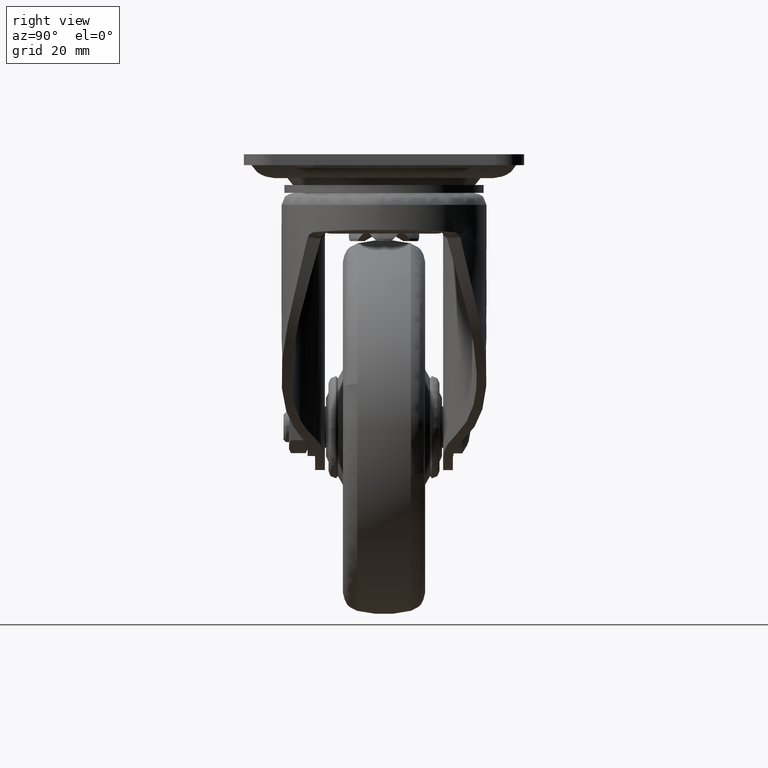
[diagram: clean part render]
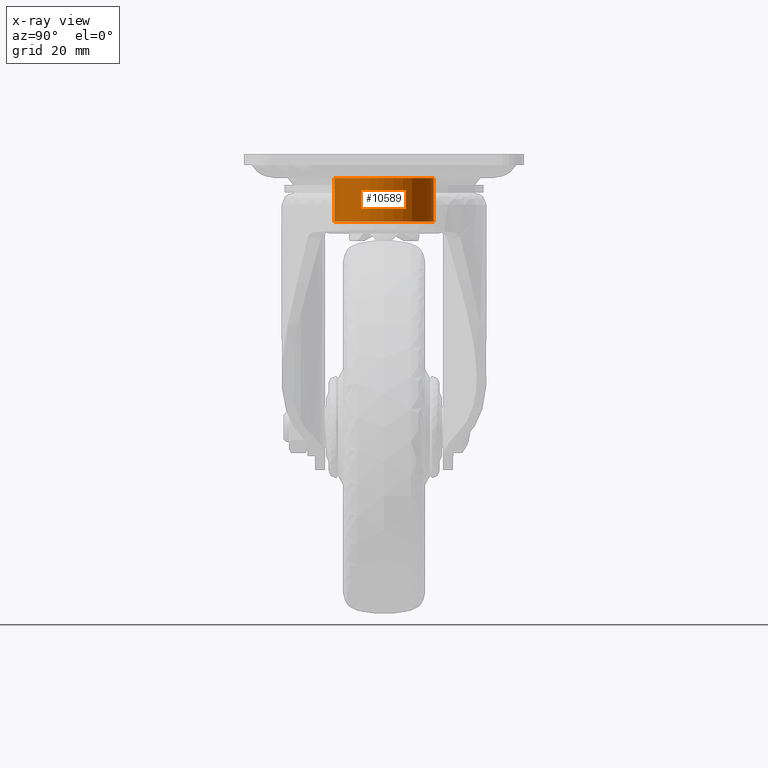
[diagram: x-ray — body ghosted, one internal face saturated and labeled with its STEP entity id]
A machine part, right view, then the same camera in x-ray: the body is ghosted and one INTERNAL B-rep face — a face not visible from any outside direction — is saturated and labeled: STEP entity #10589.
In plain terms, the highlighted face is a freeform B-spline surface patch.
Its self-contained STEP definition (entity closure, byte-faithful):
#10397=CARTESIAN_POINT('',(-0.814998002926179,-13.325099558923620,-17.975683000000100));
#10398=VERTEX_POINT('',#10397);
#10412=CARTESIAN_POINT('',(13.350000000000000,0.0,-17.975683000000100));
#10413=VERTEX_POINT('',#10412);
#10414=CARTESIAN_POINT('',(-0.814998002926180,-13.325099558923615,-17.975683000000092));
#10415=CARTESIAN_POINT('',(-0.407879390104272,-13.350000000000003,-17.975683000000100));
#10416=CARTESIAN_POINT('',(0.0,-13.350000000000000,-17.975683000000100));
#10417=CARTESIAN_POINT('',(13.350000000000000,-13.350000000000000,-17.975683000000096));
#10418=CARTESIAN_POINT('',(13.350000000000000,0.0,-17.975683000000100));
#10426=(BOUNDED_CURVE()B_SPLINE_CURVE(2,(#10414,#10415,#10416,#10417,#10418),.UNSPECIFIED.,.F.,.U.)B_SPLINE_CURVE_WITH_KNOTS((3,2,3),(0.239332962240209,0.250000000000000,0.500000000000000),.UNSPECIFIED.)CURVE()GEOMETRIC_REPRESENTATION_ITEM()RATIONAL_B_SPLINE_CURVE((0.976072041669432,0.987502787901321,1.0,0.707106781186548,1.0))REPRESENTATION_ITEM(''));
#10427=EDGE_CURVE('',#10398,#10413,#10426,.T.);
#10429=CARTESIAN_POINT('',(0.814998002926179,13.325099558923620,-17.975683000000100));
#10430=VERTEX_POINT('',#10429);
#10431=CARTESIAN_POINT('',(13.350000000000000,0.0,-17.975683000000100));
#10432=CARTESIAN_POINT('',(13.350000000000000,12.558425993062761,-17.975683000000096));
#10433=CARTESIAN_POINT('',(0.814998002926182,13.325099558923617,-17.975683000000096));
#10441=(BOUNDED_CURVE()B_SPLINE_CURVE(2,(#10431,#10432,#10433),.UNSPECIFIED.,.F.,.U.)B_SPLINE_CURVE_WITH_KNOTS((3,3),(0.500000000000000,0.739332962240209),.UNSPECIFIED.)CURVE()GEOMETRIC_REPRESENTATION_ITEM()RATIONAL_B_SPLINE_CURVE((1.0,0.719603993285227,0.976072041669432))REPRESENTATION_ITEM(''));
#10442=EDGE_CURVE('',#10413,#10430,#10441,.T.);
#10487=CARTESIAN_POINT('',(0.814998002926179,13.325099558923620,-6.373000000000000));
#10488=VERTEX_POINT('',#10487);
#10489=CARTESIAN_POINT('',(0.814998002926179,13.325099558923620,-17.975683000000100));
#10490=CARTESIAN_POINT('',(0.814998002926179,13.325099558923620,-6.373000000000000));
#10491=QUASI_UNIFORM_CURVE('',1,(#10489,#10490),.UNSPECIFIED.,.F.,.U.);
#10492=EDGE_CURVE('',#10430,#10488,#10491,.T.);
#10511=CARTESIAN_POINT('',(-0.814998002926179,-13.325099558923620,-6.373000000000000));
#10512=VERTEX_POINT('',#10511);
#10526=CARTESIAN_POINT('',(-0.814998002926179,-13.325099558923620,-17.975683000000100));
#10527=CARTESIAN_POINT('',(-0.814998002926179,-13.325099558923620,-6.373000000000000));
#10528=QUASI_UNIFORM_CURVE('',1,(#10526,#10527),.UNSPECIFIED.,.F.,.U.);
#10529=EDGE_CURVE('',#10398,#10512,#10528,.T.);
#10535=CARTESIAN_POINT('',(-0.814998002790341,-13.325099558931919,-18.265750075000110));
#10536=CARTESIAN_POINT('',(12.510101556141580,-14.140097561722262,-18.265750075000099));
#10537=CARTESIAN_POINT('',(13.325099558931919,-0.814998002790341,-18.265750075000110));
#10538=CARTESIAN_POINT('',(14.140097561722262,12.510101556141580,-18.265750075000099));
#10539=CARTESIAN_POINT('',(0.814998002790341,13.325099558931919,-18.265750075000110));
#10540=CARTESIAN_POINT('',(-0.814998002790341,-13.325099558931919,-6.075681248124996));
#10541=CARTESIAN_POINT('',(12.510101556141580,-14.140097561722262,-6.075681248124995));
#10542=CARTESIAN_POINT('',(13.325099558931919,-0.814998002790341,-6.075681248124996));
#10543=CARTESIAN_POINT('',(14.140097561722262,12.510101556141580,-6.075681248124995));
#10544=CARTESIAN_POINT('',(0.814998002790341,13.325099558931919,-6.075681248124996));
#10552=(BOUNDED_SURFACE()B_SPLINE_SURFACE(2,1,((#10535,#10540),(#10536,#10541),(#10537,#10542),(#10538,#10543),(#10539,#10544)),.UNSPECIFIED.,.F.,.F.,.U.)B_SPLINE_SURFACE_WITH_KNOTS((3,2,3),(2,2),(0.0,22.119004230723270,44.238008461446533),(0.0,12.190068826875111),.UNSPECIFIED.)GEOMETRIC_REPRESENTATION_ITEM()RATIONAL_B_SPLINE_SURFACE(((1.0,1.0),(0.707106781186548,0.707106781186548),(1.0,1.0),(0.707106781186548,0.707106781186548),(1.0,1.0)))REPRESENTATION_ITEM('')SURFACE());
#10553=ORIENTED_EDGE('',*,*,#10442,.F.);
#10554=ORIENTED_EDGE('',*,*,#10427,.F.);
#10555=ORIENTED_EDGE('',*,*,#10529,.T.);
#10556=CARTESIAN_POINT('',(13.350000000000000,0.0,-6.373000000000000));
#10557=VERTEX_POINT('',#10556);
#10558=CARTESIAN_POINT('',(-0.814998002926182,-13.325099558923617,-6.373000000000000));
#10559=CARTESIAN_POINT('',(-0.407879390104273,-13.350000000000003,-6.373000000000000));
#10560=CARTESIAN_POINT('',(0.0,-13.350000000000000,-6.373000000000000));
#10561=CARTESIAN_POINT('',(13.350000000000000,-13.350000000000000,-6.373000000000000));
#10562=CARTESIAN_POINT('',(13.350000000000000,0.0,-6.373000000000000));
#10570=(BOUNDED_CURVE()B_SPLINE_CURVE(2,(#10558,#10559,#10560,#10561,#10562),.UNSPECIFIED.,.F.,.U.)B_SPLINE_CURVE_WITH_KNOTS((3,2,3),(0.739332962240209,0.750000000000000,1.0),.UNSPECIFIED.)CURVE()GEOMETRIC_REPRESENTATION_ITEM()RATIONAL_B_SPLINE_CURVE((0.976072041669432,0.987502787901321,1.0,0.707106781186548,1.0))REPRESENTATION_ITEM(''));
#10571=EDGE_CURVE('',#10512,#10557,#10570,.T.);
#10572=ORIENTED_EDGE('',*,*,#10571,.T.);
#10573=CARTESIAN_POINT('',(13.350000000000000,0.0,-6.373000000000000));
#10574=CARTESIAN_POINT('',(13.350000000000000,12.558425993062764,-6.373000000000000));
#10575=CARTESIAN_POINT('',(0.814998002926180,13.325099558923615,-6.373000000000000));
#10583=(BOUNDED_CURVE()B_SPLINE_CURVE(2,(#10573,#10574,#10575),.UNSPECIFIED.,.F.,.U.)B_SPLINE_CURVE_WITH_KNOTS((3,3),(0.0,0.239332962240209),.UNSPECIFIED.)CURVE()GEOMETRIC_REPRESENTATION_ITEM()RATIONAL_B_SPLINE_CURVE((1.0,0.719603993285227,0.976072041669432))REPRESENTATION_ITEM(''));
#10584=EDGE_CURVE('',#10557,#10488,#10583,.T.);
#10585=ORIENTED_EDGE('',*,*,#10584,.T.);
#10586=ORIENTED_EDGE('',*,*,#10492,.F.);
#10587=EDGE_LOOP('',(#10553,#10554,#10555,#10572,#10585,#10586));
#10588=FACE_OUTER_BOUND('',#10587,.T.);
#10589=ADVANCED_FACE('',(#10588),#10552,.F.);